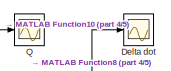
[diagram: root canvas - part 1/5, top center region]
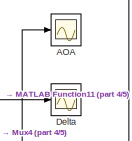
[diagram: root canvas - part 2/5, top center region]
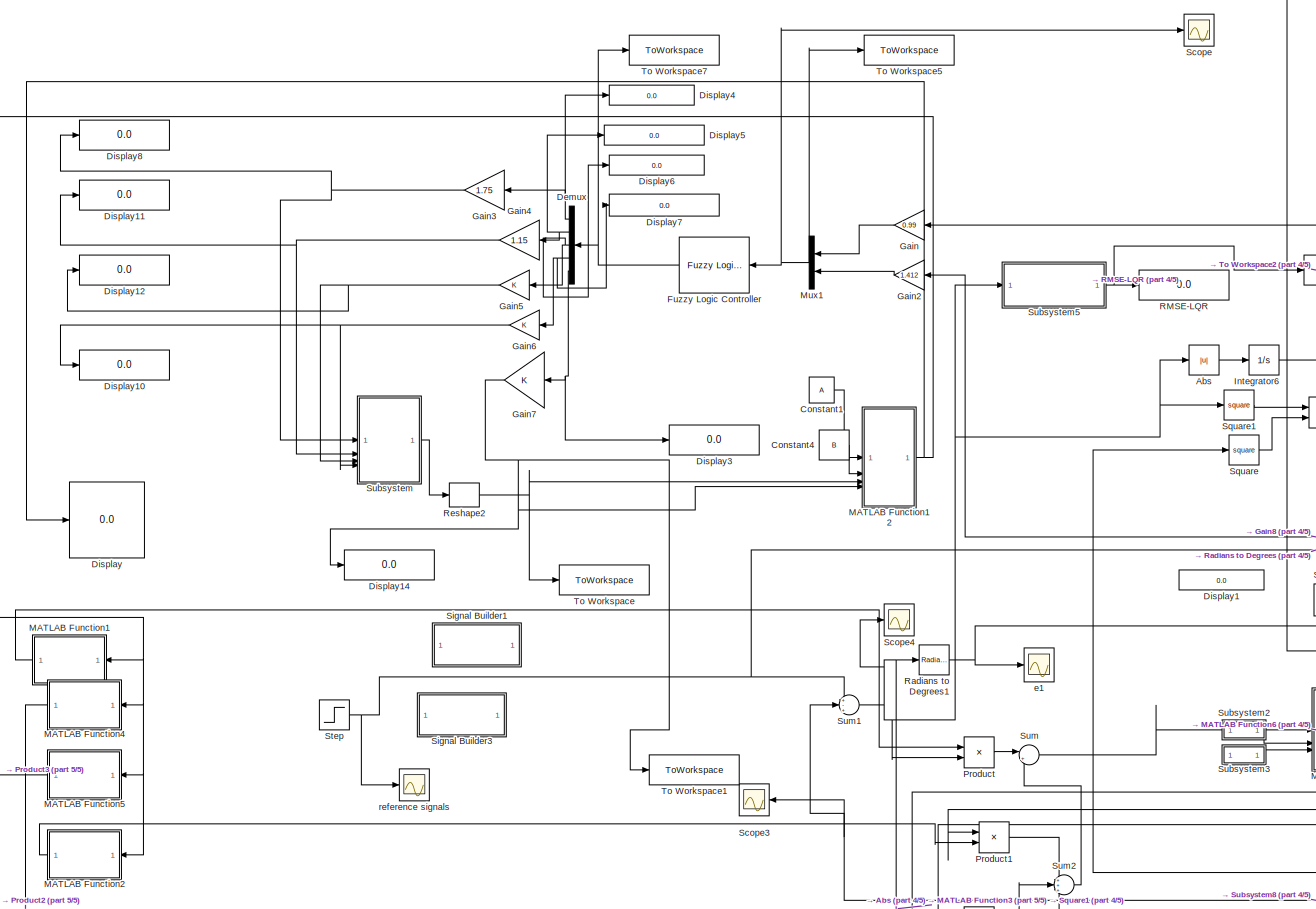
[diagram: root canvas - part 3/5, central region]
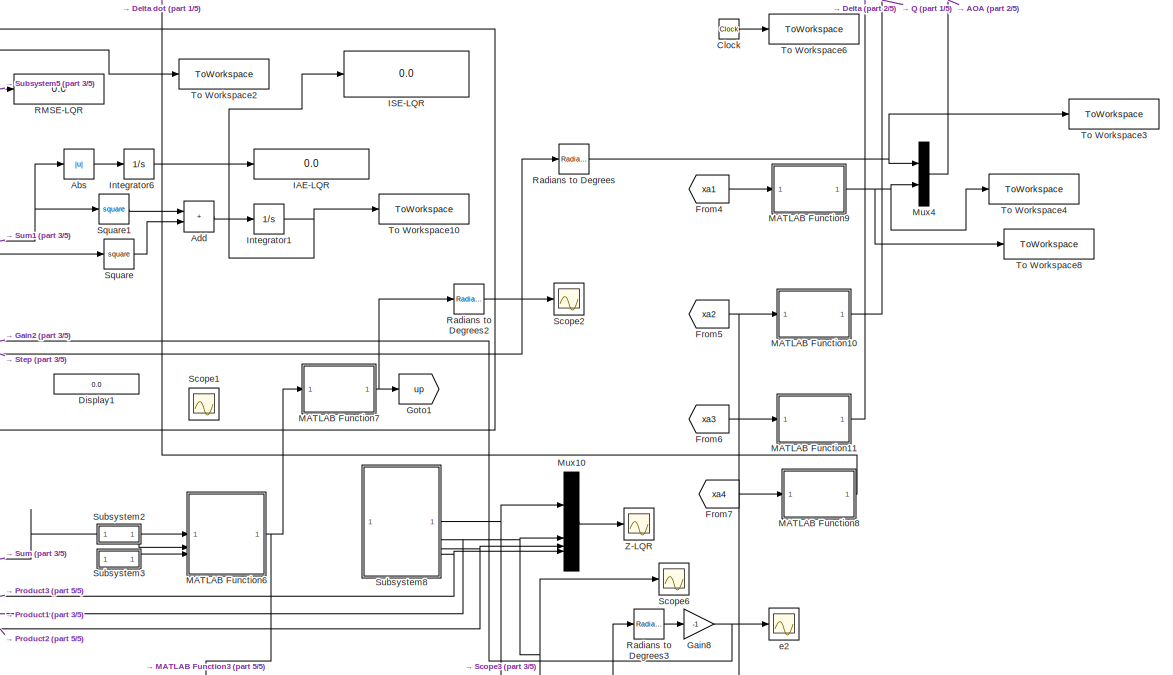
[diagram: root canvas - part 4/5, middle right region]
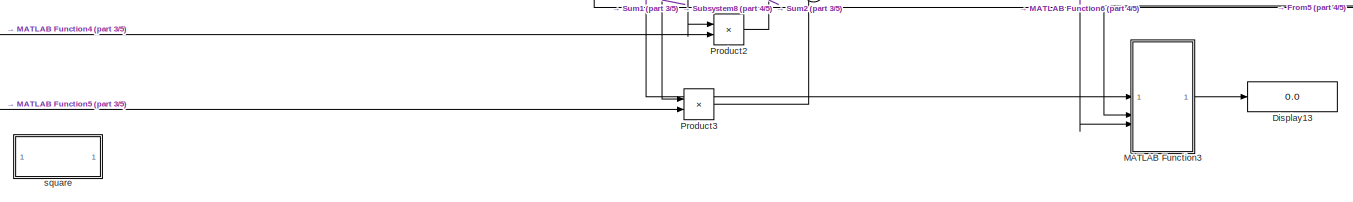
[diagram: root canvas - part 5/5, bottom center region]
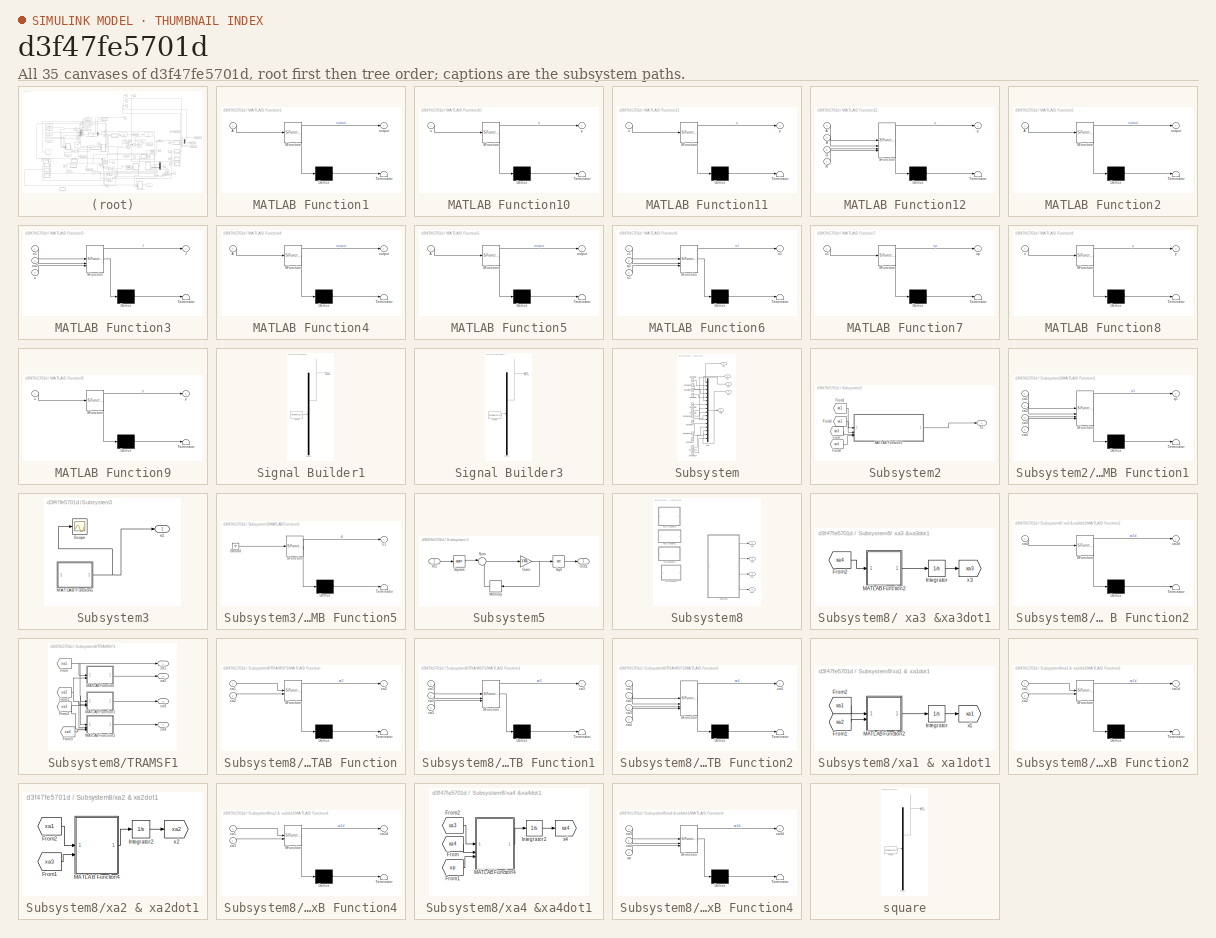
[diagram: thumbnail index - all 35 canvases of the model, root first then tree order]
MODEL slx_d3f47fe5701d
KIND model
CONFIG AbsTol = auto
CONFIG EnableMultiTasking = off
CONFIG FixedStep = auto
CONFIG MaxStep = auto
CONFIG MinStep = auto
CONFIG RelTol = 1e-3
CONFIG SampleTimeConstraint = Unconstrained
CONFIG SolverName = ode23
CONFIG StartTime = 0.0
CONFIG StopTime = 8
BLOCK [Scope] AOA
  ActiveDisplayYMaximum = 17.21938
  ActiveDisplayYMinimum = -1.91326
  DataLogging = on
  DataLoggingVariableName = AOA_data
  Floating = off
  GraphicalSettings = {"Style":{"BackgroundColor":[0.12941176470588237,0.12941176470588237,0.12941176470588237],"AxesColor":[0.07058823529411765,0.07058823529411765,0.07058823529411765],"LabelsColor":[0.8509803921568627,0.8509803921568627,0.8509803921568627],"PreserveColors":false,"Visible":[true,true],"LineStyle":["-","-"],"LineWidth":[1.5,1.5],"BarWidth":[0.9,0.9],"LineColor":["auto","auto"],"LineFaceAlpha":[1,1],"Li...<+2094ch>
  MultipleDisplayCache = [{"MaxYLimMag":17.21938,"MaxYLimReal":17.21938,"MinYLimMag":0,"MinYLimReal":-1.91326,"PlotAsMagnitudePhase":false,"ShowGrid":true,"ShowLegend":false,"Title":"%<SignalLabel>","YLabel":""}]
  NumInputPorts = 1
  SampleTime = 0.001
  ScopeFrameLocation = window
  WasSavedAsWebScope = on
  WindowPosition = [488.000000,222.000000,560.000000,420.000000,]
BLOCK [Abs] Abs
  SaturateOnIntegerOverflow = off
BLOCK [Sum] Add
  IconShape = rectangular
BLOCK [Clock] Clock
BLOCK [Constant] Constant1
  Value = A
BLOCK [Constant] Constant4
  Value = B
BLOCK [Scope] Delta
  ActiveDisplayYMaximum = 2.4285504182521622
  ActiveDisplayYMinimum = -21.856953764269463
  DataLogging = on
  DataLoggingVariableName = Delta_data
  Floating = off
  GraphicalSettings = {"Style":{"BackgroundColor":[0.12941176470588237,0.12941176470588237,0.12941176470588237],"AxesColor":[0.07058823529411765,0.07058823529411765,0.07058823529411765],"LabelsColor":[0.8509803921568627,0.8509803921568627,0.8509803921568627],"PreserveColors":false,"Visible":[true],"LineStyle":["-"],"LineWidth":[1.5],"BarWidth":[0.9],"LineColor":["auto"],"LineFaceAlpha":[1],"LineEdgeAlpha":[1],"Marker":...<+2007ch>
  MultipleDisplayCache = [{"MaxYLimMag":21.856953764269463,"MaxYLimReal":2.4285504182521622,"MinYLimMag":0,"MinYLimReal":-21.856953764269463,"PlotAsMagnitudePhase":false,"ShowGrid":true,"ShowLegend":true,"Title":"%<SignalLabel>","YLabel":""}]
  NumInputPorts = 1
  SampleTime = 0.001
  ScopeFrameLocation = window
  ShowLegend = on
  WasSavedAsWebScope = on
  WindowPosition = [488.000000,222.000000,560.000000,420.000000,]
BLOCK [Scope] Delta dot
  ActiveDisplayYMaximum = 7.85777152411853
  ActiveDisplayYMinimum = -52.861950793684656
  DataLogging = on
  DataLoggingVariableName = DeltaDot_data
  Floating = off
  GraphicalSettings = {"Style":{"BackgroundColor":[0.12941176470588237,0.12941176470588237,0.12941176470588237],"AxesColor":[0.07058823529411765,0.07058823529411765,0.07058823529411765],"LabelsColor":[0.8509803921568627,0.8509803921568627,0.8509803921568627],"PreserveColors":false,"Visible":[true],"LineStyle":["-"],"LineWidth":[1.5],"BarWidth":[0.9],"LineColor":["auto"],"LineFaceAlpha":[1],"LineEdgeAlpha":[1],"Marker":...<+2002ch>
  MultipleDisplayCache = [{"MaxYLimMag":52.861950793684656,"MaxYLimReal":7.85777152411853,"MinYLimMag":0,"MinYLimReal":-52.861950793684656,"PlotAsMagnitudePhase":false,"ShowGrid":true,"ShowLegend":true,"Title":"%<SignalLabel>","YLabel":""}]
  NumInputPorts = 1
  SampleTime = 0.001
  ScopeFrameLocation = window
  ShowLegend = on
  WasSavedAsWebScope = on
  WindowPosition = [1.000000,49.000000,1536.000000,740.000000,]
BLOCK [Demux] Demux
  Outputs = 5
BLOCK [Display] Display
  Decimation = 1
BLOCK [Display] Display1
  Decimation = 1
BLOCK [Display] Display10
  Decimation = 1
BLOCK [Display] Display11
  Decimation = 1
BLOCK [Display] Display12
  Decimation = 1
BLOCK [Display] Display13
  Decimation = 1
BLOCK [Display] Display14
  Decimation = 1
BLOCK [Display] Display3
  Decimation = 1
BLOCK [Display] Display4
  Decimation = 1
BLOCK [Display] Display5
  Decimation = 1
BLOCK [Display] Display6
  Decimation = 1
BLOCK [Display] Display7
  Decimation = 1
BLOCK [Display] Display8
  Decimation = 1
BLOCK [From] From4
  GotoTag = xa1
  TagVisibility = global
BLOCK [From] From5
  GotoTag = xa2
  TagVisibility = global
BLOCK [From] From6
  GotoTag = xa3
  TagVisibility = global
BLOCK [From] From7
  GotoTag = xa4
  TagVisibility = global
BLOCK [Reference] Fuzzy Logic Controller  REF=fuzblock/Fuzzy Logic   (lib defined in mdl_858b3b3e7478)
Controller
  NameLocation = top
  SourceBlock = fuzblock/Fuzzy Logic \nController
  SourceType = Fuzzy Inference System
BLOCK [Gain] Gain
  Gain = 0.99
  NameLocation = top
BLOCK [Gain] Gain2
  Gain = 1.412
  NameLocation = top
BLOCK [Gain] Gain3
  Gain = 1.75
  NameLocation = top
BLOCK [Gain] Gain4
  Gain = 1.15
  NameLocation = top
BLOCK [Gain] Gain5
  NameLocation = top
BLOCK [Gain] Gain6
  NameLocation = top
BLOCK [Gain] Gain7
  NameLocation = top
BLOCK [Gain] Gain8
  Gain = -1
BLOCK [Goto] Goto1
  GotoTag = up
  TagVisibility = global
BLOCK [Display] IAE-LQR
  Decimation = 1
BLOCK [Display] ISE-LQR
  Decimation = 1
BLOCK [Integrator] Integrator1
BLOCK [Integrator] Integrator6
BLOCK [SubSystem] MATLAB Function1
  ErrorFcn = Stateflow.Translate.translate
  PermitHierarchicalResolution = ExplicitOnly
  SFBlockType = MATLAB Function
  TreatAsAtomicUnit = on
BLOCK [Demux] MATLAB Function1/ Demux 
  Outputs = 1
BLOCK [S-Function] MATLAB Function1/ SFunction 
  EnableBusSupport = off
  FunctionName = sf_sfun
  PortCounts = [1 2]
  SFcnIsStateOwnerBlock = off
  SFunctionDeploymentMode = off
  Tag = Stateflow S-Function 1
BLOCK [Terminator] MATLAB Function1/ Terminator 
BLOCK [Inport] MATLAB Function1/A
BLOCK [Outport] MATLAB Function1/output
BLOCK [SubSystem] MATLAB Function10
  ErrorFcn = Stateflow.Translate.translate
  LibrarySourceBlock = simulink/User-Defined\nFunctions/MATLAB Function
  PermitHierarchicalResolution = ExplicitOnly
  SFBlockType = MATLAB Function
  TreatAsAtomicUnit = on
BLOCK [Demux] MATLAB Function10/ Demux 
  Outputs = 1
BLOCK [S-Function] MATLAB Function10/ SFunction 
  EnableBusSupport = off
  FunctionName = sf_sfun
  PortCounts = [1 2]
  SFcnIsStateOwnerBlock = off
  SFunctionDeploymentMode = off
  Tag = Stateflow S-Function 7
BLOCK [Terminator] MATLAB Function10/ Terminator 
BLOCK [Inport] MATLAB Function10/u
BLOCK [Outport] MATLAB Function10/y
BLOCK [SubSystem] MATLAB Function11
  ErrorFcn = Stateflow.Translate.translate
  LibrarySourceBlock = simulink/User-Defined\nFunctions/MATLAB Function
  PermitHierarchicalResolution = ExplicitOnly
  SFBlockType = MATLAB Function
  TreatAsAtomicUnit = on
BLOCK [Demux] MATLAB Function11/ Demux 
  Outputs = 1
BLOCK [S-Function] MATLAB Function11/ SFunction 
  EnableBusSupport = off
  FunctionName = sf_sfun
  PortCounts = [1 2]
  SFcnIsStateOwnerBlock = off
  SFunctionDeploymentMode = off
  Tag = Stateflow S-Function 14
BLOCK [Terminator] MATLAB Function11/ Terminator 
BLOCK [Inport] MATLAB Function11/u
BLOCK [Outport] MATLAB Function11/y
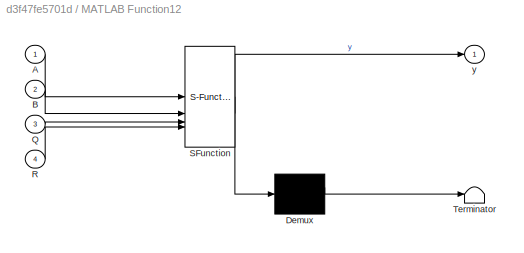
BLOCK [SubSystem] MATLAB Function12
  ErrorFcn = Stateflow.Translate.translate
  PermitHierarchicalResolution = ExplicitOnly
  SFBlockType = MATLAB Function
  TreatAsAtomicUnit = on
BLOCK [Demux] MATLAB Function12/ Demux 
  Outputs = 1
BLOCK [S-Function] MATLAB Function12/ SFunction 
  EnableBusSupport = off
  FunctionName = sf_sfun
  PortCounts = [4 2]
  SFcnIsStateOwnerBlock = off
  SFunctionDeploymentMode = off
  Tag = Stateflow S-Function 4
BLOCK [Terminator] MATLAB Function12/ Terminator 
BLOCK [Inport] MATLAB Function12/A
BLOCK [Inport] MATLAB Function12/B
  Port = 2
BLOCK [Inport] MATLAB Function12/Q
  Port = 3
BLOCK [Inport] MATLAB Function12/R
  Port = 4
BLOCK [Outport] MATLAB Function12/y
BLOCK [SubSystem] MATLAB Function2
  ErrorFcn = Stateflow.Translate.translate
  PermitHierarchicalResolution = ExplicitOnly
  SFBlockType = MATLAB Function
  TreatAsAtomicUnit = on
BLOCK [Demux] MATLAB Function2/ Demux 
  Outputs = 1
BLOCK [S-Function] MATLAB Function2/ SFunction 
  EnableBusSupport = off
  FunctionName = sf_sfun
  PortCounts = [1 2]
  SFcnIsStateOwnerBlock = off
  SFunctionDeploymentMode = off
  Tag = Stateflow S-Function 6
BLOCK [Terminator] MATLAB Function2/ Terminator 
BLOCK [Inport] MATLAB Function2/A
BLOCK [Outport] MATLAB Function2/output
BLOCK [SubSystem] MATLAB Function3
  ErrorFcn = Stateflow.Translate.translate
  LibrarySourceBlock = simulink/User-Defined\nFunctions/MATLAB Function
  PermitHierarchicalResolution = ExplicitOnly
  SFBlockType = MATLAB Function
  TreatAsAtomicUnit = on
BLOCK [Demux] MATLAB Function3/ Demux 
  Outputs = 1
BLOCK [S-Function] MATLAB Function3/ SFunction 
  EnableBusSupport = off
  FunctionName = sf_sfun
  PortCounts = [3 2]
  SFcnIsStateOwnerBlock = off
  SFunctionDeploymentMode = off
  Tag = Stateflow S-Function 3
BLOCK [Terminator] MATLAB Function3/ Terminator 
BLOCK [Outport] MATLAB Function3/J
BLOCK [Inport] MATLAB Function3/e1
BLOCK [Inport] MATLAB Function3/u
  Port = 3
BLOCK [Inport] MATLAB Function3/xa2
  Port = 2
BLOCK [SubSystem] MATLAB Function4
  ErrorFcn = Stateflow.Translate.translate
  PermitHierarchicalResolution = ExplicitOnly
  SFBlockType = MATLAB Function
  TreatAsAtomicUnit = on
BLOCK [Demux] MATLAB Function4/ Demux 
  Outputs = 1
BLOCK [S-Function] MATLAB Function4/ SFunction 
  EnableBusSupport = off
  FunctionName = sf_sfun
  PortCounts = [1 2]
  SFcnIsStateOwnerBlock = off
  SFunctionDeploymentMode = off
  Tag = Stateflow S-Function 8
BLOCK [Terminator] MATLAB Function4/ Terminator 
BLOCK [Inport] MATLAB Function4/A
BLOCK [Outport] MATLAB Function4/output
BLOCK [SubSystem] MATLAB Function5
  ErrorFcn = Stateflow.Translate.translate
  PermitHierarchicalResolution = ExplicitOnly
  SFBlockType = MATLAB Function
  TreatAsAtomicUnit = on
BLOCK [Demux] MATLAB Function5/ Demux 
  Outputs = 1
BLOCK [S-Function] MATLAB Function5/ SFunction 
  EnableBusSupport = off
  FunctionName = sf_sfun
  PortCounts = [1 2]
  SFcnIsStateOwnerBlock = off
  SFunctionDeploymentMode = off
  Tag = Stateflow S-Function 9
BLOCK [Terminator] MATLAB Function5/ Terminator 
BLOCK [Inport] MATLAB Function5/A
BLOCK [Outport] MATLAB Function5/output
BLOCK [SubSystem] MATLAB Function6
  ErrorFcn = Stateflow.Translate.translate
  LibrarySourceBlock = simulink/User-Defined\nFunctions/MATLAB Function
  PermitHierarchicalResolution = ExplicitOnly
  SFBlockType = MATLAB Function
  TreatAsAtomicUnit = on
BLOCK [Demux] MATLAB Function6/ Demux 
  Outputs = 1
BLOCK [S-Function] MATLAB Function6/ SFunction 
  EnableBusSupport = off
  FunctionName = sf_sfun
  PortCounts = [3 2]
  SFcnIsStateOwnerBlock = off
  SFunctionDeploymentMode = off
  Tag = Stateflow S-Function 19
BLOCK [Terminator] MATLAB Function6/ Terminator 
BLOCK [Inport] MATLAB Function6/q1
  Port = 2
BLOCK [Inport] MATLAB Function6/s1
  Port = 3
BLOCK [Outport] MATLAB Function6/u1
BLOCK [Inport] MATLAB Function6/v1
BLOCK [SubSystem] MATLAB Function7
  ErrorFcn = Stateflow.Translate.translate
  LibrarySourceBlock = simulink/User-Defined\nFunctions/MATLAB Function
  PermitHierarchicalResolution = ExplicitOnly
  SFBlockType = MATLAB Function
  TreatAsAtomicUnit = on
BLOCK [Demux] MATLAB Function7/ Demux 
  Outputs = 1
BLOCK [S-Function] MATLAB Function7/ SFunction 
  EnableBusSupport = off
  FunctionName = sf_sfun
  PortCounts = [1 2]
  SFcnIsStateOwnerBlock = off
  SFunctionDeploymentMode = off
  Tag = Stateflow S-Function 20
BLOCK [Terminator] MATLAB Function7/ Terminator 
BLOCK [Inport] MATLAB Function7/u1
BLOCK [Outport] MATLAB Function7/up
BLOCK [SubSystem] MATLAB Function8
  ErrorFcn = Stateflow.Translate.translate
  LibrarySourceBlock = simulink/User-Defined\nFunctions/MATLAB Function
  PermitHierarchicalResolution = ExplicitOnly
  SFBlockType = MATLAB Function
  TreatAsAtomicUnit = on
BLOCK [Demux] MATLAB Function8/ Demux 
  Outputs = 1
BLOCK [S-Function] MATLAB Function8/ SFunction 
  EnableBusSupport = off
  FunctionName = sf_sfun
  PortCounts = [1 2]
  SFcnIsStateOwnerBlock = off
  SFunctionDeploymentMode = off
  Tag = Stateflow S-Function 21
BLOCK [Terminator] MATLAB Function8/ Terminator 
BLOCK [Inport] MATLAB Function8/u
BLOCK [Outport] MATLAB Function8/y
BLOCK [SubSystem] MATLAB Function9
  ErrorFcn = Stateflow.Translate.translate
  LibrarySourceBlock = simulink/User-Defined\nFunctions/MATLAB Function
  PermitHierarchicalResolution = ExplicitOnly
  SFBlockType = MATLAB Function
  TreatAsAtomicUnit = on
BLOCK [Demux] MATLAB Function9/ Demux 
  Outputs = 1
BLOCK [S-Function] MATLAB Function9/ SFunction 
  EnableBusSupport = off
  FunctionName = sf_sfun
  PortCounts = [1 2]
  SFcnIsStateOwnerBlock = off
  SFunctionDeploymentMode = off
  Tag = Stateflow S-Function 22
BLOCK [Terminator] MATLAB Function9/ Terminator 
BLOCK [Inport] MATLAB Function9/u
BLOCK [Outport] MATLAB Function9/y
BLOCK [Mux] Mux1
  DisplayOption = bar
  Inputs = 2
  NameLocation = top
BLOCK [Mux] Mux10
  DisplayOption = bar
BLOCK [Mux] Mux4
  DisplayOption = bar
  Inputs = 2
BLOCK [Product] Product
BLOCK [Product] Product1
BLOCK [Product] Product2
BLOCK [Product] Product3
BLOCK [Scope] Q
  ActiveDisplayYMaximum = 1
  ActiveDisplayYMinimum = -1
  DataLogging = on
  DataLoggingVariableName = Q_data
  Floating = off
  GraphicalSettings = {"Style":{"BackgroundColor":[0.12941176470588237,0.12941176470588237,0.12941176470588237],"AxesColor":[0.07058823529411765,0.07058823529411765,0.07058823529411765],"LabelsColor":[0.8509803921568627,0.8509803921568627,0.8509803921568627],"PreserveColors":false,"Visible":[true],"LineStyle":["-"],"LineWidth":[1.5],"BarWidth":[0.9],"LineColor":["auto"],"LineFaceAlpha":[1],"LineEdgeAlpha":[1],"Marker":...<+2005ch>
  MultipleDisplayCache = [{"MaxYLimMag":1,"MaxYLimReal":1,"MinYLimMag":0,"MinYLimReal":-1,"PlotAsMagnitudePhase":false,"ShowGrid":true,"ShowLegend":true,"Title":"%<SignalLabel>","YLabel":""}]
  NumInputPorts = 1
  SampleTime = 0.001
  ScopeFrameLocation = window
  ShowLegend = on
  WasSavedAsWebScope = on
  WindowPosition = [249.000000,180.000000,786.000000,458.000000,]
BLOCK [Display] RMSE-LQR
  Decimation = 1
BLOCK [Reference] Radians to Degrees  REF=simulink_extras/Transformations/Radians
to Degrees
  SourceBlock = simulink_extras/Transformations/Radians\nto Degrees
  SourceType = RadiansToDegrees
BLOCK [Reference] Radians to Degrees1  REF=simulink_extras/Transformations/Radians
to Degrees
  SourceBlock = simulink_extras/Transformations/Radians\nto Degrees
  SourceType = RadiansToDegrees
BLOCK [Reference] Radians to Degrees2  REF=simulink_extras/Transformations/Radians
to Degrees
  SourceBlock = simulink_extras/Transformations/Radians\nto Degrees
  SourceType = RadiansToDegrees
BLOCK [Reference] Radians to Degrees3  REF=simulink_extras/Transformations/Radians
to Degrees
  SourceBlock = simulink_extras/Transformations/Radians\nto Degrees
  SourceType = RadiansToDegrees
BLOCK [Reshape] Reshape2
  OutputDimensionality = Customize
  OutputDimensions = [4,4]
BLOCK [Scope] Scope
  ActiveDisplayYMaximum = 1
  ActiveDisplayYMinimum = -1
  DataLogging = on
  DataLoggingSaveFormat = Array
  DataLoggingVariableName = e1e2
  Floating = off
  GraphicalSettings = {"Style":{"BackgroundColor":[0.12941176470588237,0.12941176470588237,0.12941176470588237],"AxesColor":[0.07058823529411765,0.07058823529411765,0.07058823529411765],"LabelsColor":[0.8509803921568627,0.8509803921568627,0.8509803921568627],"PreserveColors":false,"Visible":[true,true],"LineStyle":["-","-"],"LineWidth":[1.5,1.5],"BarWidth":[0.9,0.9],"LineColor":["auto","auto"],"LineFaceAlpha":[1,1],"Li...<+2041ch>
  MultipleDisplayCache = [{"MaxYLimMag":1,"MaxYLimReal":1,"MinYLimMag":0,"MinYLimReal":-1,"PlotAsMagnitudePhase":false,"ShowGrid":true,"ShowLegend":false,"Title":"%<SignalLabel>","YLabel":""}]
  NumInputPorts = 1
  SampleTime = 0.001
  ScopeFrameLocation = window
  WasSavedAsWebScope = on
  WindowPosition = [488.000000,222.000000,560.000000,420.000000,]
BLOCK [Scope] Scope1
  ActiveDisplayYMaximum = 17242.7377
  ActiveDisplayYMinimum = -9214.81546
  DataLoggingVariableName = ScopeData1
  Floating = off
  GraphicalSettings = {"GraphicalSettings":{"LegacySettings":true,"Style":{"Style":{"AxesColor":"[0 0 0]","ChannelNames":[""],"ColorOrder":"[1 0.909803921568627 0.392156862745098;0.149019607843137 0.549019607843137 0.866666666666667;0.96078431372549 0.466666666666667 0.16078431372549;0.286274509803922 0.858823529411765 0.250980392156863;0.752941176470588 0.36078431372549 0.984313725490196;0.423529411764706 0.9568627450...<+432ch>
  MultipleDisplayCache = [{"MaxYLimMag":17242.7377,"MaxYLimReal":17242.7377,"MinYLimMag":0,"MinYLimReal":-9214.81546,"PlotAsMagnitudePhase":false,"ShowGrid":true,"ShowLegend":false,"Title":"%<SignalLabel>","YLabel":""}]
  NumInputPorts = 1
  WasSavedAsWebScope = on
  WindowPosition = [1 49 1536 740]
BLOCK [Scope] Scope2
  ActiveDisplayYMaximum = 2.1717
  ActiveDisplayYMinimum = -21.84967
  DataLoggingVariableName = ScopeData3
  Floating = off
  GraphicalSettings = {"GraphicalSettings":{"LegacySettings":true,"Style":{"Style":{"AxesColor":"[0 0 0]","ChannelNames":[""],"ColorOrder":"[1 0.909803921568627 0.392156862745098;0.149019607843137 0.549019607843137 0.866666666666667;0.96078431372549 0.466666666666667 0.16078431372549;0.286274509803922 0.858823529411765 0.250980392156863;0.752941176470588 0.36078431372549 0.984313725490196;0.423529411764706 0.9568627450...<+463ch>
  MultipleDisplayCache = [{"MaxYLimMag":21.84967,"MaxYLimReal":2.1717,"MinYLimMag":0,"MinYLimReal":-21.84967,"PlotAsMagnitudePhase":false,"ShowGrid":true,"ShowLegend":false,"Title":"%<SignalLabel>","YLabel":""}]
  NumInputPorts = 1
  WasSavedAsWebScope = on
BLOCK [Scope] Scope3
  ActiveDisplayYMaximum = 0.33356
  ActiveDisplayYMinimum = -0.34522
  DataLoggingVariableName = ScopeData2
  Floating = off
  GraphicalSettings = {"GraphicalSettings":{"LegacySettings":true,"Style":{"Style":{"AxesColor":"[0 0 0]","ChannelNames":[""],"ColorOrder":"[1 0.909803921568627 0.392156862745098;0.149019607843137 0.549019607843137 0.866666666666667;0.96078431372549 0.466666666666667 0.16078431372549;0.286274509803922 0.858823529411765 0.250980392156863;0.752941176470588 0.36078431372549 0.984313725490196;0.423529411764706 0.9568627450...<+468ch>
  MultipleDisplayCache = [{"MaxYLimMag":0.34522,"MaxYLimReal":0.33356,"MinYLimMag":0,"MinYLimReal":-0.34522,"PlotAsMagnitudePhase":false,"ShowGrid":true,"ShowLegend":false,"Title":"%<SignalLabel>","YLabel":""}]
  NameLocation = top
  NumInputPorts = 1
  WasSavedAsWebScope = on
BLOCK [Scope] Scope4
  ActiveDisplayYMaximum = 0.03442
  ActiveDisplayYMinimum = -0.29471
  DataLoggingVariableName = ScopeData3
  Floating = off
  GraphicalSettings = {"GraphicalSettings":{"LegacySettings":true,"Style":{"Style":{"AxesColor":"[0 0 0]","ChannelNames":[""],"ColorOrder":"[1 0.909803921568627 0.392156862745098;0.149019607843137 0.549019607843137 0.866666666666667;0.96078431372549 0.466666666666667 0.16078431372549;0.286274509803922 0.858823529411765 0.250980392156863;0.752941176470588 0.36078431372549 0.984313725490196;0.423529411764706 0.9568627450...<+466ch>
  MultipleDisplayCache = [{"MaxYLimMag":0.29471,"MaxYLimReal":0.03442,"MinYLimMag":0,"MinYLimReal":-0.29471,"PlotAsMagnitudePhase":false,"ShowGrid":true,"ShowLegend":false,"Title":"%<SignalLabel>","YLabel":""}]
  NumInputPorts = 1
  WasSavedAsWebScope = on
BLOCK [Scope] Scope6
  ActiveDisplayYMaximum = 2.34785
  ActiveDisplayYMinimum = -3.06278
  DataLoggingVariableName = ScopeData4
  Floating = off
  GraphicalSettings = {"GraphicalSettings":{"LegacySettings":true,"Style":{"AxesScalingProperties":{"ScaleAxesLimitsAtStop":false},"Style":{"AxesColor":"[0 0 0]","ChannelNames":[""],"ColorOrder":"[1 0.909803921568627 0.392156862745098;0.149019607843137 0.549019607843137 0.866666666666667;0.96078431372549 0.466666666666667 0.16078431372549;0.286274509803922 0.858823529411765 0.250980392156863;0.752941176470588 0.3607843...<+549ch>
  MultipleDisplayCache = [{"MaxYLimMag":3.06278,"MaxYLimReal":2.34785,"MinYLimMag":0,"MinYLimReal":-3.06278,"PlotAsMagnitudePhase":false,"ShowGrid":true,"ShowLegend":false,"Title":"%<SignalLabel>","YLabel":""}]
  NumInputPorts = 1
  WasSavedAsWebScope = on
BLOCK [SubSystem] Signal Builder1
  ClipboardFcn = sigbuilder_block('clipboard');
  CloseFcn = sigbuilder_block('close');
  ContinueFcn = sigbuilder_block('continue');
  CopyFcn = sigbuilder_block('copy');
  DeleteFcn = sigbuilder_block('delete');
  LoadFcn = sigbuilder_block('load');
  MaskHideContents = on
  ModelCloseFcn = sigbuilder_block('modelClose');
  NameChangeFcn = sigbuilder_block('namechange');
  OpenFcn = sigbuilder_block('open',[5.4 -24.6 1141.2 477.6 ]);
  PauseFcn = sigbuilder_block('pause');
  PreSaveFcn = sigbuilder_block('preSave');
  StartFcn = sigbuilder_block('start');
  StopFcn = sigbuilder_block('stop');
  Tag = STV Subsys
BLOCK [Demux] Signal Builder1/Demux
  DisplayOption = none
  Outputs = 1
  Tag = STV Demux
BLOCK [FromWorkspace] Signal Builder1/FromWs
  Tag = STV FromWs
  VariableName = tuvar
BLOCK [Outport] Signal Builder1/Signal 1
  Tag = STV Outport
BLOCK [SubSystem] Signal Builder3
  ClipboardFcn = sigbuilder_block('clipboard');
  CloseFcn = sigbuilder_block('close');
  ContinueFcn = sigbuilder_block('continue');
  CopyFcn = sigbuilder_block('copy');
  DeleteFcn = sigbuilder_block('delete');
  LoadFcn = sigbuilder_block('load');
  MaskHideContents = on
  ModelCloseFcn = sigbuilder_block('modelClose');
  NameChangeFcn = sigbuilder_block('namechange');
  OpenFcn = sigbuilder_block('open',[5.4 -40.2 1141.2 515.4 ]);
  PauseFcn = sigbuilder_block('pause');
  PreSaveFcn = sigbuilder_block('preSave');
  StartFcn = sigbuilder_block('start');
  StopFcn = sigbuilder_block('stop');
  Tag = STV Subsys
BLOCK [Demux] Signal Builder3/Demux
  DisplayOption = none
  Outputs = 1
  Tag = STV Demux
BLOCK [FromWorkspace] Signal Builder3/FromWs
  Tag = STV FromWs
  VariableName = tuvar
BLOCK [Outport] Signal Builder3/Signal 1
  Tag = STV Outport
BLOCK [Math] Square
  Operator = square
BLOCK [Math] Square1
  Operator = square
BLOCK [Step] Step
  After = 0.2617795
  SampleTime = 0
  Time = 0
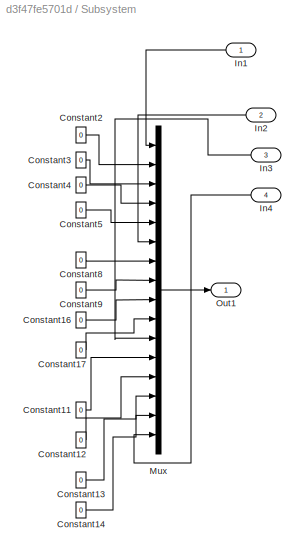
BLOCK [SubSystem] Subsystem
BLOCK [Constant] Subsystem/Constant11
  Value = 0
BLOCK [Constant] Subsystem/Constant12
  Value = 0
BLOCK [Constant] Subsystem/Constant13
  Value = 0
BLOCK [Constant] Subsystem/Constant14
  Value = 0
BLOCK [Constant] Subsystem/Constant16
  Value = 0
BLOCK [Constant] Subsystem/Constant17
  Value = 0
BLOCK [Constant] Subsystem/Constant2
  Value = 0
BLOCK [Constant] Subsystem/Constant3
  Value = 0
BLOCK [Constant] Subsystem/Constant4
  Value = 0
BLOCK [Constant] Subsystem/Constant5
  Value = 0
BLOCK [Constant] Subsystem/Constant8
  Value = 0
BLOCK [Constant] Subsystem/Constant9
  Value = 0
BLOCK [Inport] Subsystem/In1
BLOCK [Inport] Subsystem/In2
  Port = 2
BLOCK [Inport] Subsystem/In3
  Port = 3
BLOCK [Inport] Subsystem/In4
  Port = 4
BLOCK [Mux] Subsystem/Mux
  DisplayOption = bar
  Inputs = 16
BLOCK [Outport] Subsystem/Out1
BLOCK [SubSystem] Subsystem2
BLOCK [From] Subsystem2/From
  GotoTag = xa3
  TagVisibility = global
BLOCK [From] Subsystem2/From1
  GotoTag = xa1
  TagVisibility = global
BLOCK [From] Subsystem2/From2
  GotoTag = xa4
  TagVisibility = global
BLOCK [From] Subsystem2/From3
  GotoTag = xa2
  TagVisibility = global
BLOCK [SubSystem] Subsystem2/MATLAB Function1
  ErrorFcn = Stateflow.Translate.translate
  LibrarySourceBlock = simulink/User-Defined\nFunctions/MATLAB Function
  PermitHierarchicalResolution = ExplicitOnly
  SFBlockType = MATLAB Function
  TreatAsAtomicUnit = on
BLOCK [Demux] Subsystem2/MATLAB Function1/ Demux 
  Outputs = 1
BLOCK [S-Function] Subsystem2/MATLAB Function1/ SFunction 
  EnableBusSupport = off
  FunctionName = sf_sfun
  PortCounts = [4 2]
  SFcnIsStateOwnerBlock = off
  SFunctionDeploymentMode = off
  Tag = Stateflow S-Function 23
BLOCK [Terminator] Subsystem2/MATLAB Function1/ Terminator 
BLOCK [Outport] Subsystem2/MATLAB Function1/q1
BLOCK [Inport] Subsystem2/MATLAB Function1/xa1
BLOCK [Inport] Subsystem2/MATLAB Function1/xa2
  Port = 2
BLOCK [Inport] Subsystem2/MATLAB Function1/xa3
  Port = 3
BLOCK [Inport] Subsystem2/MATLAB Function1/xa4
  Port = 4
BLOCK [Outport] Subsystem2/q1
BLOCK [SubSystem] Subsystem3
BLOCK [SubSystem] Subsystem3/MATLAB Function5
  ErrorFcn = Stateflow.Translate.translate
  LibrarySourceBlock = simulink/User-Defined\nFunctions/MATLAB Function
  PermitHierarchicalResolution = ExplicitOnly
  SFBlockType = MATLAB Function
  TreatAsAtomicUnit = on
BLOCK [Demux] Subsystem3/MATLAB Function5/ Demux 
  Outputs = 1
BLOCK [Ground] Subsystem3/MATLAB Function5/ Ground 
BLOCK [S-Function] Subsystem3/MATLAB Function5/ SFunction 
  EnableBusSupport = off
  FunctionName = sf_sfun
  PortCounts = [1 2]
  SFcnIsStateOwnerBlock = off
  SFunctionDeploymentMode = off
  Tag = Stateflow S-Function 24
BLOCK [Terminator] Subsystem3/MATLAB Function5/ Terminator 
BLOCK [Outport] Subsystem3/MATLAB Function5/s1
BLOCK [Scope] Subsystem3/Scope
  ActiveDisplayYMaximum = -11030.38049
  ActiveDisplayYMinimum = -11135.15313
  DataLoggingVariableName = ScopeData2
  Floating = off
  GraphicalSettings = {"GraphicalSettings":{"LegacySettings":true,"Style":{"AxesScalingProperties":{"ScaleAxesLimitsAtStop":false},"Style":{"AxesColor":"[0 0 0]","ChannelNames":[""],"ColorOrder":"[1 1 0.0666666666666667;0.0745098039215686 0.623529411764706 1;1 0.411764705882353 0.16078431372549;0.392156862745098 0.831372549019608 0.0745098039215686;0.717647058823529 0.274509803921569 1;0.0588235294117647 1 1;1 0.074509...<+399ch>
  MultipleDisplayCache = [{"MaxYLimMag":11135.15313,"MaxYLimReal":-11030.38049,"MinYLimMag":0,"MinYLimReal":-11135.15313,"PlotAsMagnitudePhase":false,"ShowGrid":true,"ShowLegend":false,"Title":"%<SignalLabel>","YLabel":""}]
  NumInputPorts = 1
  WasSavedAsWebScope = on
BLOCK [Outport] Subsystem3/s1
BLOCK [SubSystem] Subsystem5
BLOCK [Gain] Subsystem5/Gain
  Gain = 1/3435
BLOCK [Inport] Subsystem5/In1
BLOCK [Memory] Subsystem5/Memory
BLOCK [Outport] Subsystem5/Out1
BLOCK [Sqrt] Subsystem5/Sqrt
BLOCK [Math] Subsystem5/Square
  Operator = square
BLOCK [Sum] Subsystem5/Sum
  Inputs = |++
BLOCK [SubSystem] Subsystem8
BLOCK [SubSystem] Subsystem8/ xa3 &xa3dot1
BLOCK [From] Subsystem8/ xa3 &xa3dot1/From2
  GotoTag = xa4
  TagVisibility = global
BLOCK [Integrator] Subsystem8/ xa3 &xa3dot1/Integrator
BLOCK [SubSystem] Subsystem8/ xa3 &xa3dot1/MATLAB Function2
  ErrorFcn = Stateflow.Translate.translate
  LibrarySourceBlock = simulink/User-Defined\nFunctions/MATLAB Function
  PermitHierarchicalResolution = ExplicitOnly
  SFBlockType = MATLAB Function
  TreatAsAtomicUnit = on
BLOCK [Demux] Subsystem8/ xa3 &xa3dot1/MATLAB Function2/ Demux 
  Outputs = 1
BLOCK [S-Function] Subsystem8/ xa3 &xa3dot1/MATLAB Function2/ SFunction 
  EnableBusSupport = off
  FunctionName = sf_sfun
  PortCounts = [1 2]
  SFcnIsStateOwnerBlock = off
  SFunctionDeploymentMode = off
  Tag = Stateflow S-Function 5
BLOCK [Terminator] Subsystem8/ xa3 &xa3dot1/MATLAB Function2/ Terminator 
BLOCK [Outport] Subsystem8/ xa3 &xa3dot1/MATLAB Function2/xa3d
BLOCK [Inport] Subsystem8/ xa3 &xa3dot1/MATLAB Function2/xa4
BLOCK [Goto] Subsystem8/ xa3 &xa3dot1/x3
  GotoTag = xa3
  TagVisibility = global
BLOCK [SubSystem] Subsystem8/TRAMSF1
BLOCK [From] Subsystem8/TRAMSF1/From
  GotoTag = xa1
  TagVisibility = global
BLOCK [From] Subsystem8/TRAMSF1/From1
  GotoTag = xa2
  TagVisibility = global
BLOCK [From] Subsystem8/TRAMSF1/From2
  GotoTag = xa3
  TagVisibility = global
BLOCK [From] Subsystem8/TRAMSF1/From3
  GotoTag = xa4
  TagVisibility = global
BLOCK [SubSystem] Subsystem8/TRAMSF1/MATLAB Function
  ErrorFcn = Stateflow.Translate.translate
  LibrarySourceBlock = simulink/User-Defined\nFunctions/MATLAB Function
  PermitHierarchicalResolution = ExplicitOnly
  SFBlockType = MATLAB Function
  TreatAsAtomicUnit = on
BLOCK [Demux] Subsystem8/TRAMSF1/MATLAB Function/ Demux 
  Outputs = 1
BLOCK [S-Function] Subsystem8/TRAMSF1/MATLAB Function/ SFunction 
  EnableBusSupport = off
  FunctionName = sf_sfun
  PortCounts = [2 2]
  SFcnIsStateOwnerBlock = off
  SFunctionDeploymentMode = off
  Tag = Stateflow S-Function 25
BLOCK [Terminator] Subsystem8/TRAMSF1/MATLAB Function/ Terminator 
BLOCK [Inport] Subsystem8/TRAMSF1/MATLAB Function/xa1
BLOCK [Inport] Subsystem8/TRAMSF1/MATLAB Function/xa2
  Port = 2
BLOCK [Outport] Subsystem8/TRAMSF1/MATLAB Function/za2
BLOCK [SubSystem] Subsystem8/TRAMSF1/MATLAB Function1
  ErrorFcn = Stateflow.Translate.translate
  LibrarySourceBlock = simulink/User-Defined\nFunctions/MATLAB Function
  PermitHierarchicalResolution = ExplicitOnly
  SFBlockType = MATLAB Function
  TreatAsAtomicUnit = on
BLOCK [Demux] Subsystem8/TRAMSF1/MATLAB Function1/ Demux 
  Outputs = 1
BLOCK [S-Function] Subsystem8/TRAMSF1/MATLAB Function1/ SFunction 
  EnableBusSupport = off
  FunctionName = sf_sfun
  PortCounts = [3 2]
  SFcnIsStateOwnerBlock = off
  SFunctionDeploymentMode = off
  Tag = Stateflow S-Function 26
BLOCK [Terminator] Subsystem8/TRAMSF1/MATLAB Function1/ Terminator 
BLOCK [Inport] Subsystem8/TRAMSF1/MATLAB Function1/xa1
BLOCK [Inport] Subsystem8/TRAMSF1/MATLAB Function1/xa2
  Port = 2
BLOCK [Inport] Subsystem8/TRAMSF1/MATLAB Function1/xa3
  Port = 3
BLOCK [Outport] Subsystem8/TRAMSF1/MATLAB Function1/za3
BLOCK [SubSystem] Subsystem8/TRAMSF1/MATLAB Function2
  ErrorFcn = Stateflow.Translate.translate
  LibrarySourceBlock = simulink/User-Defined\nFunctions/MATLAB Function
  PermitHierarchicalResolution = ExplicitOnly
  SFBlockType = MATLAB Function
  TreatAsAtomicUnit = on
BLOCK [Demux] Subsystem8/TRAMSF1/MATLAB Function2/ Demux 
  Outputs = 1
BLOCK [S-Function] Subsystem8/TRAMSF1/MATLAB Function2/ SFunction 
  EnableBusSupport = off
  FunctionName = sf_sfun
  PortCounts = [4 2]
  SFcnIsStateOwnerBlock = off
  SFunctionDeploymentMode = off
  Tag = Stateflow S-Function 27
BLOCK [Terminator] Subsystem8/TRAMSF1/MATLAB Function2/ Terminator 
BLOCK [Inport] Subsystem8/TRAMSF1/MATLAB Function2/xa1
BLOCK [Inport] Subsystem8/TRAMSF1/MATLAB Function2/xa2
  Port = 2
BLOCK [Inport] Subsystem8/TRAMSF1/MATLAB Function2/xa3
  Port = 3
BLOCK [Inport] Subsystem8/TRAMSF1/MATLAB Function2/xa4
  Port = 4
BLOCK [Outport] Subsystem8/TRAMSF1/MATLAB Function2/za4
BLOCK [Outport] Subsystem8/TRAMSF1/za1
BLOCK [Outport] Subsystem8/TRAMSF1/za2
  Port = 2
BLOCK [Outport] Subsystem8/TRAMSF1/za3
  Port = 3
BLOCK [Outport] Subsystem8/TRAMSF1/za4
  Port = 4
BLOCK [SubSystem] Subsystem8/xa1 & xa1dot1
BLOCK [From] Subsystem8/xa1 & xa1dot1/From1
  GotoTag = xa2
  TagVisibility = global
BLOCK [From] Subsystem8/xa1 & xa1dot1/From2
  GotoTag = xa1
  TagVisibility = global
BLOCK [Integrator] Subsystem8/xa1 & xa1dot1/Integrator
BLOCK [SubSystem] Subsystem8/xa1 & xa1dot1/MATLAB Function2
  ErrorFcn = Stateflow.Translate.translate
  LibrarySourceBlock = simulink/User-Defined\nFunctions/MATLAB Function
  PermitHierarchicalResolution = ExplicitOnly
  SFBlockType = MATLAB Function
  TreatAsAtomicUnit = on
BLOCK [Demux] Subsystem8/xa1 & xa1dot1/MATLAB Function2/ Demux 
  Outputs = 1
BLOCK [S-Function] Subsystem8/xa1 & xa1dot1/MATLAB Function2/ SFunction 
  EnableBusSupport = off
  FunctionName = sf_sfun
  PortCounts = [2 2]
  SFcnIsStateOwnerBlock = off
  SFunctionDeploymentMode = off
  Tag = Stateflow S-Function 28
BLOCK [Terminator] Subsystem8/xa1 & xa1dot1/MATLAB Function2/ Terminator 
BLOCK [Inport] Subsystem8/xa1 & xa1dot1/MATLAB Function2/xa1
BLOCK [Outport] Subsystem8/xa1 & xa1dot1/MATLAB Function2/xa1d
BLOCK [Inport] Subsystem8/xa1 & xa1dot1/MATLAB Function2/xa2
  Port = 2
BLOCK [Goto] Subsystem8/xa1 & xa1dot1/x1
  GotoTag = xa1
  TagVisibility = global
BLOCK [SubSystem] Subsystem8/xa2 & xa2dot1
BLOCK [From] Subsystem8/xa2 & xa2dot1/From1
  GotoTag = xa3
  TagVisibility = global
BLOCK [From] Subsystem8/xa2 & xa2dot1/From2
  GotoTag = xa1
  TagVisibility = global
BLOCK [Integrator] Subsystem8/xa2 & xa2dot1/Integrator2
BLOCK [SubSystem] Subsystem8/xa2 & xa2dot1/MATLAB Function4
  ErrorFcn = Stateflow.Translate.translate
  LibrarySourceBlock = simulink/User-Defined\nFunctions/MATLAB Function
  PermitHierarchicalResolution = ExplicitOnly
  SFBlockType = MATLAB Function
  TreatAsAtomicUnit = on
BLOCK [Demux] Subsystem8/xa2 & xa2dot1/MATLAB Function4/ Demux 
  Outputs = 1
BLOCK [S-Function] Subsystem8/xa2 & xa2dot1/MATLAB Function4/ SFunction 
  EnableBusSupport = off
  FunctionName = sf_sfun
  PortCounts = [2 2]
  SFcnIsStateOwnerBlock = off
  SFunctionDeploymentMode = off
  Tag = Stateflow S-Function 29
BLOCK [Terminator] Subsystem8/xa2 & xa2dot1/MATLAB Function4/ Terminator 
BLOCK [Inport] Subsystem8/xa2 & xa2dot1/MATLAB Function4/xa1
BLOCK [Outport] Subsystem8/xa2 & xa2dot1/MATLAB Function4/xa2d
BLOCK [Inport] Subsystem8/xa2 & xa2dot1/MATLAB Function4/xa3
  Port = 2
BLOCK [Goto] Subsystem8/xa2 & xa2dot1/x2
  GotoTag = xa2
  TagVisibility = global
BLOCK [SubSystem] Subsystem8/xa4 &xa4dot1
BLOCK [From] Subsystem8/xa4 &xa4dot1/From
  GotoTag = xa4
  TagVisibility = global
BLOCK [From] Subsystem8/xa4 &xa4dot1/From1
  GotoTag = up
  TagVisibility = global
BLOCK [From] Subsystem8/xa4 &xa4dot1/From2
  GotoTag = xa3
  TagVisibility = global
BLOCK [Integrator] Subsystem8/xa4 &xa4dot1/Integrator2
BLOCK [SubSystem] Subsystem8/xa4 &xa4dot1/MATLAB Function4
  ErrorFcn = Stateflow.Translate.translate
  LibrarySourceBlock = simulink/User-Defined\nFunctions/MATLAB Function
  PermitHierarchicalResolution = ExplicitOnly
  SFBlockType = MATLAB Function
  TreatAsAtomicUnit = on
BLOCK [Demux] Subsystem8/xa4 &xa4dot1/MATLAB Function4/ Demux 
  Outputs = 1
BLOCK [S-Function] Subsystem8/xa4 &xa4dot1/MATLAB Function4/ SFunction 
  EnableBusSupport = off
  FunctionName = sf_sfun
  PortCounts = [3 2]
  SFcnIsStateOwnerBlock = off
  SFunctionDeploymentMode = off
  Tag = Stateflow S-Function 30
BLOCK [Terminator] Subsystem8/xa4 &xa4dot1/MATLAB Function4/ Terminator 
BLOCK [Inport] Subsystem8/xa4 &xa4dot1/MATLAB Function4/up
  Port = 3
BLOCK [Inport] Subsystem8/xa4 &xa4dot1/MATLAB Function4/xa3
BLOCK [Inport] Subsystem8/xa4 &xa4dot1/MATLAB Function4/xa4
  Port = 2
BLOCK [Outport] Subsystem8/xa4 &xa4dot1/MATLAB Function4/xa4d
BLOCK [Goto] Subsystem8/xa4 &xa4dot1/x4
  GotoTag = xa4
  TagVisibility = global
BLOCK [Outport] Subsystem8/za1
BLOCK [Outport] Subsystem8/za2
  Port = 2
BLOCK [Outport] Subsystem8/za3
  Port = 3
BLOCK [Outport] Subsystem8/za4
  Port = 4
BLOCK [Sum] Sum
  Inputs = |+-
BLOCK [Sum] Sum1
  Inputs = +-+
BLOCK [Sum] Sum2
  Inputs = +++
BLOCK [ToWorkspace] To Workspace
  FixptAsFi = on
  MaxDataPoints = inf
  SampleTime = -1
  VariableName = Q_M
BLOCK [ToWorkspace] To Workspace1
  FixptAsFi = on
  MaxDataPoints = inf
  SampleTime = -1
  VariableName = R
BLOCK [ToWorkspace] To Workspace10
  FixptAsFi = on
  MaxDataPoints = inf
  SampleTime = -1
  VariableName = ISElqr
BLOCK [ToWorkspace] To Workspace2
  FixptAsFi = on
  MaxDataPoints = inf
  SampleTime = -1
  VariableName = RMSE
BLOCK [ToWorkspace] To Workspace3
  FixptAsFi = on
  MaxDataPoints = inf
  SampleTime = -1
  VariableName = refsignal
BLOCK [ToWorkspace] To Workspace4
  FixptAsFi = on
  MaxDataPoints = inf
  SampleTime = -1
  VariableName = outputsignal
BLOCK [ToWorkspace] To Workspace5
  FixptAsFi = on
  MaxDataPoints = inf
  SampleTime = -1
  VariableName = Ipdata
BLOCK [ToWorkspace] To Workspace6
  FixptAsFi = on
  MaxDataPoints = inf
  SampleTime = -1
  SaveFormat = Timeseries
  VariableName = time
BLOCK [ToWorkspace] To Workspace7
  FixptAsFi = on
  MaxDataPoints = inf
  SampleTime = -1
  VariableName = opdata
BLOCK [ToWorkspace] To Workspace8
  FixptAsFi = on
  MaxDataPoints = inf
  SampleTime = -1
  SaveFormat = Timeseries
  VariableName = fuzzy
BLOCK [Scope] Z-LQR
  ActiveDisplayYMaximum = 339.33228
  ActiveDisplayYMinimum = -319.11401
  DataLoggingVariableName = ScopeData2
  Floating = off
  GraphicalSettings = {"GraphicalSettings":{"LegacySettings":true,"Style":{"Style":{"AxesColor":"[0 0 0]","ChannelNames":[""],"ColorOrder":"[1 0.909803921568627 0.392156862745098;0.149019607843137 0.549019607843137 0.866666666666667;0.96078431372549 0.466666666666667 0.16078431372549;0.286274509803922 0.858823529411765 0.250980392156863;0.752941176470588 0.36078431372549 0.984313725490196;0.423529411764706 0.9568627450...<+535ch>
  MultipleDisplayCache = [{"MaxYLimMag":339.33228,"MaxYLimReal":339.33228,"MinYLimMag":0,"MinYLimReal":-319.11401,"PlotAsMagnitudePhase":false,"ShowGrid":true,"ShowLegend":true,"Title":"%<SignalLabel>","YLabel":""}]
  NumInputPorts = 1
  ShowLegend = on
  WasSavedAsWebScope = on
  WindowPosition = [1 49 1536 740]
BLOCK [Scope] e1
  ActiveDisplayYMaximum = 37.64545
  ActiveDisplayYMinimum = -37.64101
  DataLoggingVariableName = ScopeData1
  Floating = off
  GraphicalSettings = {"GraphicalSettings":{"LegacySettings":true,"Style":{"AxesScalingProperties":{"ScaleAxesLimitsAtStop":false},"Cursors":{"CursorChannels":"[1 1]","Enabled":"true","Horizontal":"false","LinkToWaveform":"true","LockSpacing":"false","SnapToData":"false","XLocation":"[1.50000000000001 4.50000000000002]","YLocation":"[NaN NaN]"},"Stats":{"Enabled":"true"},"Style":{"AxesColor":"[0 0 0]","ChannelNames":["...<+889ch>
  MultipleDisplayCache = [{"MaxYLimMag":37.64545,"MaxYLimReal":37.64545,"MinYLimMag":0,"MinYLimReal":-37.64101,"PlotAsMagnitudePhase":false,"ShowGrid":true,"ShowLegend":true,"Title":"%<SignalLabel>","YLabel":""}]
  NumInputPorts = 1
  ShowLegend = on
  WasSavedAsWebScope = on
BLOCK [Scope] e2
  ActiveDisplayYMaximum = 174.95549
  ActiveDisplayYMinimum = -133.21966
  DataLoggingVariableName = ScopeData1
  Floating = off
  GraphicalSettings = {"GraphicalSettings":{"LegacySettings":true,"Style":{"AxesScalingProperties":{"ScaleAxesLimitsAtStop":false},"Stats":{"Enabled":"true"},"Style":{"AxesColor":"[0 0 0]","ChannelNames":[""],"ColorOrder":"[1 0.909803921568627 0.392156862745098;0.149019607843137 0.549019607843137 0.866666666666667;0.96078431372549 0.466666666666667 0.16078431372549;0.286274509803922 0.858823529411765 0.250980392156863;...<+595ch>
  MultipleDisplayCache = [{"MaxYLimMag":174.95549,"MaxYLimReal":174.95549,"MinYLimMag":0,"MinYLimReal":-133.21966,"PlotAsMagnitudePhase":false,"ShowGrid":true,"ShowLegend":false,"Title":"%<SignalLabel>","YLabel":""}]
  NumInputPorts = 1
  WasSavedAsWebScope = on
BLOCK [Scope] reference signals
  ActiveDisplayYMaximum = 0.31641
  ActiveDisplayYMinimum = -0.23071
  DataLoggingVariableName = ScopeData1
  Floating = off
  GraphicalSettings = {"GraphicalSettings":{"LegacySettings":true,"Style":{"Style":{"AxesColor":"[0 0 0]","ChannelNames":[""],"ColorOrder":"[1 0.909803921568627 0.392156862745098;0.149019607843137 0.549019607843137 0.866666666666667;0.96078431372549 0.466666666666667 0.16078431372549;0.286274509803922 0.858823529411765 0.250980392156863;0.752941176470588 0.36078431372549 0.984313725490196;0.423529411764706 0.9568627450...<+432ch>
  MultipleDisplayCache = [{"MaxYLimMag":0.31641,"MaxYLimReal":0.31641,"MinYLimMag":0,"MinYLimReal":-0.23071,"PlotAsMagnitudePhase":false,"ShowGrid":true,"ShowLegend":false,"Title":"%<SignalLabel>","YLabel":""}]
  NumInputPorts = 1
  WasSavedAsWebScope = on
BLOCK [SubSystem] square
  ClipboardFcn = sigbuilder_block('clipboard');
  CloseFcn = sigbuilder_block('close');
  ContinueFcn = sigbuilder_block('continue');
  CopyFcn = sigbuilder_block('copy');
  DeleteFcn = sigbuilder_block('delete');
  LoadFcn = sigbuilder_block('load');
  MaskHideContents = on
  ModelCloseFcn = sigbuilder_block('modelClose');
  NameChangeFcn = sigbuilder_block('namechange');
  OpenFcn = sigbuilder_block('open',[5.4 36 1141.2 516.6 ]);
  PauseFcn = sigbuilder_block('pause');
  PreSaveFcn = sigbuilder_block('preSave');
  StartFcn = sigbuilder_block('start');
  StopFcn = sigbuilder_block('stop');
  Tag = STV Subsys
BLOCK [Demux] square/Demux
  DisplayOption = none
  Outputs = 1
  Tag = STV Demux
BLOCK [FromWorkspace] square/FromWs
  Tag = STV FromWs
  VariableName = tuvar
BLOCK [Outport] square/Signal 1
  Tag = STV Outport
LINE Abs:1 -> Integrator6:1
LINE Add:1 -> Integrator1:1
LINE Clock:1 -> To Workspace6:1
LINE Constant1:1 -> MATLAB Function12:1
LINE Constant4:1 -> MATLAB Function12:2
NET Demux:1 -> Display4:1, Gain3:1
NET Demux:2 -> Display5:1, Gain4:1
NET Demux:3 -> Display6:1, Gain5:1
NET Demux:4 -> Display7:1, Gain6:1
NET Demux:5 -> Display3:1, Gain7:1
LINE From4:1 -> MATLAB Function9:1
NET From5:1 -> MATLAB Function10:1, MATLAB Function3:2
LINE From6:1 -> MATLAB Function11:1
LINE From7:1 -> MATLAB Function8:1
NET Fuzzy Logic Controller:1 -> Demux:1, To Workspace7:1
LINE Gain2:1 -> Mux1:2
NET Gain3:1 -> Display8:1, Subsystem:1
NET Gain4:1 -> Display11:1, Subsystem:2
NET Gain5:1 -> Display12:1, Subsystem:3
NET Gain6:1 -> Display10:1, Subsystem:4
NET Gain7:1 -> Display14:1, MATLAB Function12:4, To Workspace1:1
NET Gain8:1 -> Gain2:1, e2:1
LINE Gain:1 -> Mux1:1
NET Integrator1:1 -> ISE-LQR:1, To Workspace10:1
LINE Integrator6:1 -> IAE-LQR:1
LINE MATLAB Function10:1 -> Q:1
LINE MATLAB Function11:1 -> Delta:1
NET MATLAB Function12:1 -> Display:1, MATLAB Function1:1, MATLAB Function2:1, MATLAB Function4:1, MATLAB Function5:1
LINE MATLAB Function1:1 -> Product:1
LINE MATLAB Function2:1 -> Product1:2
LINE MATLAB Function3:1 -> Display13:1
LINE MATLAB Function4:1 -> Product2:2
LINE MATLAB Function5:1 -> Product3:2
NET MATLAB Function6:1 -> MATLAB Function3:3, MATLAB Function7:1
NET MATLAB Function7:1 -> Goto1:1, Radians to Degrees2:1
LINE MATLAB Function8:1 -> Delta dot:1
NET MATLAB Function9:1 -> Mux4:2, To Workspace4:1, To Workspace8:1
LINE Mux10:1 -> Z-LQR:1
NET Mux1:1 -> Fuzzy Logic Controller:1, Scope:1, To Workspace5:1
LINE Mux4:1 -> AOA:1
LINE Product1:1 -> Sum2:1
LINE Product2:1 -> Sum2:2
LINE Product3:1 -> Sum2:3
LINE Product:1 -> Sum:1
NET Radians to Degrees1:1 -> Gain:1, e1:1
LINE Radians to Degrees2:1 -> Scope2:1
LINE Radians to Degrees3:1 -> Gain8:1
NET Radians to Degrees:1 -> Mux4:1, To Workspace3:1
NET Reshape2:1 -> MATLAB Function12:3, To Workspace:1
LINE Square1:1 -> Add:1
LINE Square:1 -> Add:2
NET Step:1 -> Radians to Degrees:1, Sum1:1, reference signals:1
LINE Subsystem/Constant11:1 -> Subsystem/Mux:12
LINE Subsystem/Constant12:1 -> Subsystem/Mux:13
LINE Subsystem/Constant13:1 -> Subsystem/Mux:14
LINE Subsystem/Constant14:1 -> Subsystem/Mux:15
LINE Subsystem/Constant16:1 -> Subsystem/Mux:9
LINE Subsystem/Constant17:1 -> Subsystem/Mux:10
LINE Subsystem/Constant2:1 -> Subsystem/Mux:2
LINE Subsystem/Constant3:1 -> Subsystem/Mux:3
LINE Subsystem/Constant4:1 -> Subsystem/Mux:4
LINE Subsystem/Constant5:1 -> Subsystem/Mux:5
LINE Subsystem/Constant8:1 -> Subsystem/Mux:7
LINE Subsystem/Constant9:1 -> Subsystem/Mux:8
LINE Subsystem/In1:1 -> Subsystem/Mux:1
LINE Subsystem/In2:1 -> Subsystem/Mux:6
LINE Subsystem/In3:1 -> Subsystem/Mux:11
LINE Subsystem/In4:1 -> Subsystem/Mux:16
LINE Subsystem/Mux:1 -> Subsystem/Out1:1
LINE Subsystem2/From1:1 -> Subsystem2/MATLAB Function1:1
LINE Subsystem2/From2:1 -> Subsystem2/MATLAB Function1:4
LINE Subsystem2/From3:1 -> Subsystem2/MATLAB Function1:2
LINE Subsystem2/From:1 -> Subsystem2/MATLAB Function1:3
LINE Subsystem2/MATLAB Function1:1 -> Subsystem2/q1:1
LINE Subsystem2:1 -> MATLAB Function6:2
NET Subsystem3/MATLAB Function5:1 -> Subsystem3/Scope:1, Subsystem3/s1:1
LINE Subsystem3:1 -> MATLAB Function6:3
NET Subsystem5/Gain:1 -> Subsystem5/Memory:1, Subsystem5/Sqrt:1
LINE Subsystem5/In1:1 -> Subsystem5/Square:1
LINE Subsystem5/Memory:1 -> Subsystem5/Sum:2
LINE Subsystem5/Sqrt:1 -> Subsystem5/Out1:1
LINE Subsystem5/Square:1 -> Subsystem5/Sum:1
LINE Subsystem5/Sum:1 -> Subsystem5/Gain:1
NET Subsystem5:1 -> RMSE-LQR:1, To Workspace2:1
LINE Subsystem8/ xa3 &xa3dot1/From2:1 -> Subsystem8/ xa3 &xa3dot1/MATLAB Function2:1
LINE Subsystem8/ xa3 &xa3dot1/Integrator:1 -> Subsystem8/ xa3 &xa3dot1/x3:1
LINE Subsystem8/ xa3 &xa3dot1/MATLAB Function2:1 -> Subsystem8/ xa3 &xa3dot1/Integrator:1
NET Subsystem8/TRAMSF1/From1:1 -> Subsystem8/TRAMSF1/MATLAB Function1:2, Subsystem8/TRAMSF1/MATLAB Function2:2, Subsystem8/TRAMSF1/MATLAB Function:2
NET Subsystem8/TRAMSF1/From2:1 -> Subsystem8/TRAMSF1/MATLAB Function1:3, Subsystem8/TRAMSF1/MATLAB Function2:3
LINE Subsystem8/TRAMSF1/From3:1 -> Subsystem8/TRAMSF1/MATLAB Function2:4
NET Subsystem8/TRAMSF1/From:1 -> Subsystem8/TRAMSF1/MATLAB Function1:1, Subsystem8/TRAMSF1/MATLAB Function2:1, Subsystem8/TRAMSF1/MATLAB Function:1, Subsystem8/TRAMSF1/za1:1
LINE Subsystem8/TRAMSF1/MATLAB Function1:1 -> Subsystem8/TRAMSF1/za3:1
LINE Subsystem8/TRAMSF1/MATLAB Function2:1 -> Subsystem8/TRAMSF1/za4:1
LINE Subsystem8/TRAMSF1/MATLAB Function:1 -> Subsystem8/TRAMSF1/za2:1
LINE Subsystem8/TRAMSF1:1 -> Subsystem8/za1:1
LINE Subsystem8/TRAMSF1:2 -> Subsystem8/za2:1
LINE Subsystem8/TRAMSF1:3 -> Subsystem8/za3:1
LINE Subsystem8/TRAMSF1:4 -> Subsystem8/za4:1
LINE Subsystem8/xa1 & xa1dot1/From1:1 -> Subsystem8/xa1 & xa1dot1/MATLAB Function2:2
LINE Subsystem8/xa1 & xa1dot1/From2:1 -> Subsystem8/xa1 & xa1dot1/MATLAB Function2:1
LINE Subsystem8/xa1 & xa1dot1/Integrator:1 -> Subsystem8/xa1 & xa1dot1/x1:1
LINE Subsystem8/xa1 & xa1dot1/MATLAB Function2:1 -> Subsystem8/xa1 & xa1dot1/Integrator:1
LINE Subsystem8/xa2 & xa2dot1/From1:1 -> Subsystem8/xa2 & xa2dot1/MATLAB Function4:2
LINE Subsystem8/xa2 & xa2dot1/From2:1 -> Subsystem8/xa2 & xa2dot1/MATLAB Function4:1
LINE Subsystem8/xa2 & xa2dot1/Integrator2:1 -> Subsystem8/xa2 & xa2dot1/x2:1
LINE Subsystem8/xa2 & xa2dot1/MATLAB Function4:1 -> Subsystem8/xa2 & xa2dot1/Integrator2:1
LINE Subsystem8/xa4 &xa4dot1/From1:1 -> Subsystem8/xa4 &xa4dot1/MATLAB Function4:3
LINE Subsystem8/xa4 &xa4dot1/From2:1 -> Subsystem8/xa4 &xa4dot1/MATLAB Function4:1
LINE Subsystem8/xa4 &xa4dot1/From:1 -> Subsystem8/xa4 &xa4dot1/MATLAB Function4:2
LINE Subsystem8/xa4 &xa4dot1/Integrator2:1 -> Subsystem8/xa4 &xa4dot1/x4:1
LINE Subsystem8/xa4 &xa4dot1/MATLAB Function4:1 -> Subsystem8/xa4 &xa4dot1/Integrator2:1
NET Subsystem8:1 -> Mux10:1, Scope3:1, Sum1:2
NET Subsystem8:2 -> Mux10:2, Product1:1, Radians to Degrees3:1, Scope6:1, Square:1
NET Subsystem8:3 -> Mux10:3, Product2:1
NET Subsystem8:4 -> Mux10:4, Product3:1
LINE Subsystem:1 -> Reshape2:1
NET Sum1:1 -> Abs:1, MATLAB Function3:1, Product:2, Radians to Degrees1:1, Scope4:1, Square1:1, Subsystem5:1
LINE Sum2:1 -> Sum:2
LINE Sum:1 -> MATLAB Function6:1
note: NET lines group one-source signal fan-out (src -> all destinations, sorted); 1:1 wires keep LINE
CHART MATLAB Function9 states=1 transitions=1
  STATE_LABEL 'eML_blk_kernel()'
  STATE_LABEL 'SCRIPT:\nfunction y = fcn(u)\n\ny = u*57.32;\n'
CHART Subsystem2/MATLAB Function1 states=1 transitions=1
  STATE_LABEL 'eML_blk_kernel()'
  STATE_LABEL 'SCRIPT:\nfunction q1 = fcn(xa1,xa2,xa3,xa4)\nan=0.000103;\nbn=-0.00945;\ncn=-0.1696;\ndn=-0.034;\nam=0.000215;\nbm=-0.0195;\ncm=0.051;\ndm=-0.206;\nk=57.3248;\nKq=1.23202439;\nKa=0.020691432;\nM=2.5;\nwa=50;\nzt = 1.4;\nq1=dm*k*Kq*M^2*(-wa^2*xa3-wa*xa4*zt) + dm*k*Kq*M^2*xa4*(Ka*M*cos(xa1)*(cn*k*(2-M/3)+ 3*an*k^3*xa1^2+2*bn*k^2*abs(xa1))-Ka*M*(cn*k*(2-M/3)*xa1+an*k^3*xa1^3+bn*k^2*xa1*abs(xa1))*sin(xa1))+Kq*M^2*(cm...<+2537ch>'
CHART Subsystem3/MATLAB Function5 states=1 transitions=1
  STATE_LABEL 'eML_blk_kernel()'
  STATE_LABEL 'SCRIPT:\nfunction s1 = fcn()\nan=0.000103;\nbn=-0.00945;\ncn=-0.1696;\ndn=-0.034;\nam=0.000215;\nbm=-0.0195;\ncm=0.051;\ndm=-0.206;\nk=57.32;\nwa=50;\nKq=1.23202439;\nem=-0.03000221;\nM=2.5;\ns1=Kq*dm*k*wa^2*M^2;\n \n\n'
CHART Subsystem8/TRAMSF1/MATLAB Function states=1 transitions=1
  STATE_LABEL 'eML_blk_kernel()'
  STATE_LABEL 'SCRIPT:\nfunction za2 = fcn(xa1,xa2)\nan=0.000103;\nbn=-0.00945;\ncn=-0.1696;\ndn=-0.034;\nam=0.000215;\nbm=-0.0195;\ncm=0.051;\ndm=-0.206;\nk=57.3248;\nem=-0.03000221;\nKq=1.23202439;\nKa=0.020691432;\nM=2.5;\nwa=50;\nza2 = xa2 + k*Ka*M*xa1*cos(xa1) * (-1/3*cn*(-6+M) + an*k^2*xa1^2 + bn*k*abs(xa1));\n\n'
CHART Subsystem8/TRAMSF1/MATLAB Function1 states=1 transitions=1
  STATE_LABEL 'eML_blk_kernel()'
  STATE_LABEL 'SCRIPT:\nfunction za3 = fcn(xa1,xa2,xa3)\nan=0.000103;\nbn=-0.00945;\ncn=-0.1696;\ndn=-0.034;\nam=0.000215;\nbm=-0.0195;\ncm=0.051;\ndm=-0.206;\nk=57.3248;\nem=-0.03000221;\nKq=1.23202439;\nKa=0.020691432;\nM=2.5;\nwa=50;\nza3=M*(k*Kq*M*(cm*(-7 + (8*M)/3)*xa1 + am*k^2*xa1^3 + dm*xa3 + bm*k*xa1*abs(xa1)) + Ka*(xa2 + k*Ka*M*xa1*cos(xa1)*(-(1/3)*cn*(-6 + M) + an*k^2*xa1^2 + bn*k*abs(xa1)))*(k*cos(xa1)*(-(1/3)*cn*(-6...<+118ch>'
CHART Subsystem8/TRAMSF1/MATLAB Function2 states=1 transitions=1
  STATE_LABEL 'eML_blk_kernel()'
  STATE_LABEL 'SCRIPT:\nfunction za4 = fcn(xa1,xa2,xa3,xa4)\nan=0.000103;\nbn=-0.00945;\ncn=-0.1696;\ndn=-0.034;\nam=0.000215;\nbm=-0.0195;\ncm=0.051;\ndm=-0.206;\nk=57.3248;\nem=-0.03000221;\nKq=1.23202439;\nKa=0.020691432;\nM=2.5;\nwa=50;\nza4 = dm*k*Kq*M^2*xa4 + Kq*M^2*(cm*k*(-7 + (8*M)/3)*xa1 + am*k^3*xa1^3 + dm*k*xa3 + bm*k^2*xa1*abs(xa1))*(Ka*M*cos(xa1)*(cn*k*(2 - M/3) + 3*an*k^3*xa1^2 + bn*k^2*abs(xa1) + bn*k^2*abs(xa1))...<+712ch>'
CHART MATLAB Function1 states=1 transitions=1
  STATE_LABEL 'eML_blk_kernel()'
  STATE_LABEL 'SCRIPT:\nfunction output = extractValue(A)\n    output = A(1, 1); \nend'
CHART Subsystem8/xa1 & xa1dot1/MATLAB Function2 states=1 transitions=1
  STATE_LABEL 'eML_blk_kernel()'
  STATE_LABEL 'SCRIPT:\nfunction xa1d = fcn(xa1,xa2)\nan=0.000103;\nbn=-0.00945;\ncn=-0.1696;\ndn=-0.034;\nam=0.000215;\nbm=-0.0195;\ncm=0.051;\ndm=-0.206;\nk=180/pi;\nKa=0.020691432;\nKq=1.23202439;\nem=-0.03000221;\nM=2.5;\nwa=50;\nxa1d=Ka*M*(an*xa1^3*k^3 + bn*xa1*abs(xa1)*k^2 + cn*(2 - (M/3))*xa1*k)*cos(xa1) + xa2;\n'
CHART Subsystem8/xa2 & xa2dot1/MATLAB Function4 states=1 transitions=1
  STATE_LABEL 'eML_blk_kernel()'
  STATE_LABEL 'SCRIPT:\nfunction xa2d = fcn(xa1,xa3)\nan=0.000103;\nbn=-0.00945;\ncn=-0.1696;\ndn=-0.034;\nam=0.000215;\nbm=-0.0195;\ncm=0.051;\ndm=-0.206;\nk=57.3248;\nKa=0.020691432;\nKq=1.23202439;\nem=-0.03000221;\nM=2.5;\nwa=50;\nxa2d=Kq*M^2*(am*xa1^3*k^3 + bm*xa1*abs(xa1)*k^2 + cm*(-7 + (8*M/3))*xa1*k + dm*k*xa3);\n\n'
CHART Subsystem8/xa4 &xa4dot1/MATLAB Function4 states=1 transitions=1
  STATE_LABEL 'eML_blk_kernel()'
  STATE_LABEL 'SCRIPT:\nfunction xa4d = fcn(xa3,xa4,up)\nan=0.000103;\nbn=-0.00945;\ncn=-0.1696;\ndn=-0.034;\nam=0.000215;\nbm=-0.0195;\ncm=0.051;\ndm=-0.206;\nk=57.3248;\nem=-0.03000221;\nM=2.5;\nwa=50;\nzt=1.4\nxa4d= -wa^2*xa3 -zt*wa*xa4 + wa^2*up;\n\n'
CHART MATLAB Function3 states=1 transitions=1
  STATE_LABEL 'eML_blk_kernel()'
  STATE_LABEL 'SCRIPT:\nfunction  J = fcn(e1,xa2,u)\n\nJ=e1*e1+xa2*xa2+u*u;\n'
CHART MATLAB Function12 states=1 transitions=1
  STATE_LABEL 'eML_blk_kernel()'
  STATE_LABEL "SCRIPT:\nfunction y = fcn(A,B,Q,R)\ny = zeros(1,4);\ncoder.extrinsic('lqr');\ny = lqr(A,B,Q,R);\n"
CHART Subsystem8/ xa3 &xa3dot1/MATLAB Function2 states=1 transitions=1
  STATE_LABEL 'eML_blk_kernel()'
  STATE_LABEL 'SCRIPT:\nfunction xa3d = fcn(xa4)\nxa3d=xa4;\n'
CHART MATLAB Function2 states=1 transitions=1
  STATE_LABEL 'eML_blk_kernel()'
  STATE_LABEL 'SCRIPT:\nfunction output = extractValue(A)\n    output = A(1, 2); \nend'
CHART MATLAB Function10 states=1 transitions=1
  STATE_LABEL 'eML_blk_kernel()'
  STATE_LABEL 'SCRIPT:\nfunction y = fcn(u)\n\ny = u*57.32;\n'
CHART MATLAB Function4 states=1 transitions=1
  STATE_LABEL 'eML_blk_kernel()'
  STATE_LABEL 'SCRIPT:\nfunction output = extractValue(A)\n    output = A(1, 3); \nend'
CHART MATLAB Function5 states=1 transitions=1
  STATE_LABEL 'eML_blk_kernel()'
  STATE_LABEL 'SCRIPT:\nfunction output = extractValue(A)\n    output = A(1,4 ...\n        ); \nend'
CHART MATLAB Function11 states=1 transitions=1
  STATE_LABEL 'eML_blk_kernel()'
  STATE_LABEL 'SCRIPT:\nfunction y = fcn(u)\n\ny = u*57.32;\n'
CHART MATLAB Function6 states=1 transitions=1
  STATE_LABEL 'eML_blk_kernel()'
  STATE_LABEL 'SCRIPT:\nfunction u1 = fcn(v1,q1,s1)\nu1 = (v1-q1)/s1;\n'
CHART MATLAB Function7 states=1 transitions=1
  STATE_LABEL 'eML_blk_kernel()'
  STATE_LABEL 'SCRIPT:\nfunction up = fcn(u1)\n\nup = u1;\n'
CHART MATLAB Function8 states=1 transitions=1
  STATE_LABEL 'eML_blk_kernel()'
  STATE_LABEL 'SCRIPT:\nfunction y = fcn(u)\n\ny = u*57.32;\n'
CHART  states=0 transitions=0
CHART  states=0 transitions=0
CHART  states=0 transitions=0
CHART  states=0 transitions=0
CHART  states=0 transitions=0
CHART  states=0 transitions=0
CHART  states=0 transitions=0
CHART  states=0 transitions=0
CHART  states=0 transitions=0
CHART  states=0 transitions=0
CHART  states=0 transitions=0
CHART  states=0 transitions=0
CHART  states=0 transitions=0
CHART  states=0 transitions=0
CHART  states=0 transitions=0
CHART  states=0 transitions=0
CHART  states=0 transitions=0
CHART  states=0 transitions=0
CHART  states=0 transitions=0
CHART  states=0 transitions=0
CHART  states=0 transitions=0
